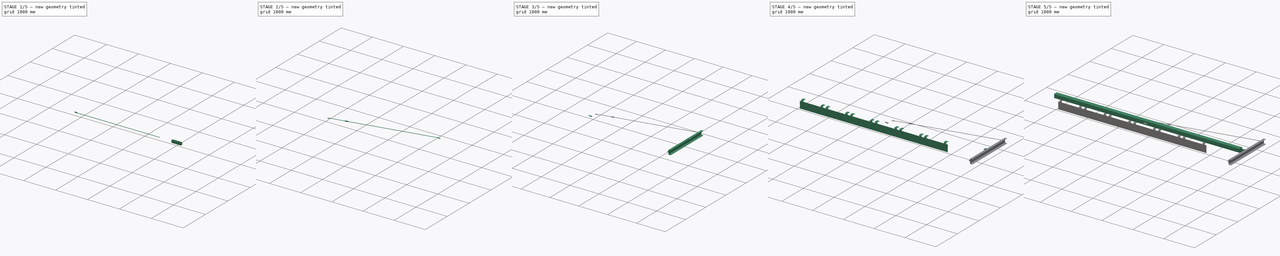
[diagram: build sequence overview — one tinted view per stage of 5, left to right]
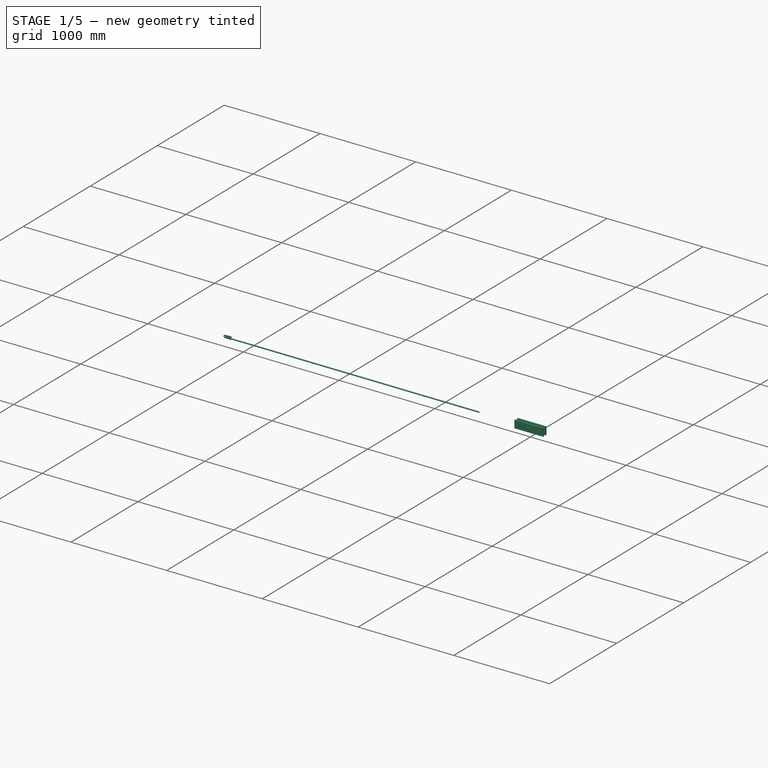
[diagram: stage 1 of 5 — iso view after this stage's code; geometry added in this stage tinted green]
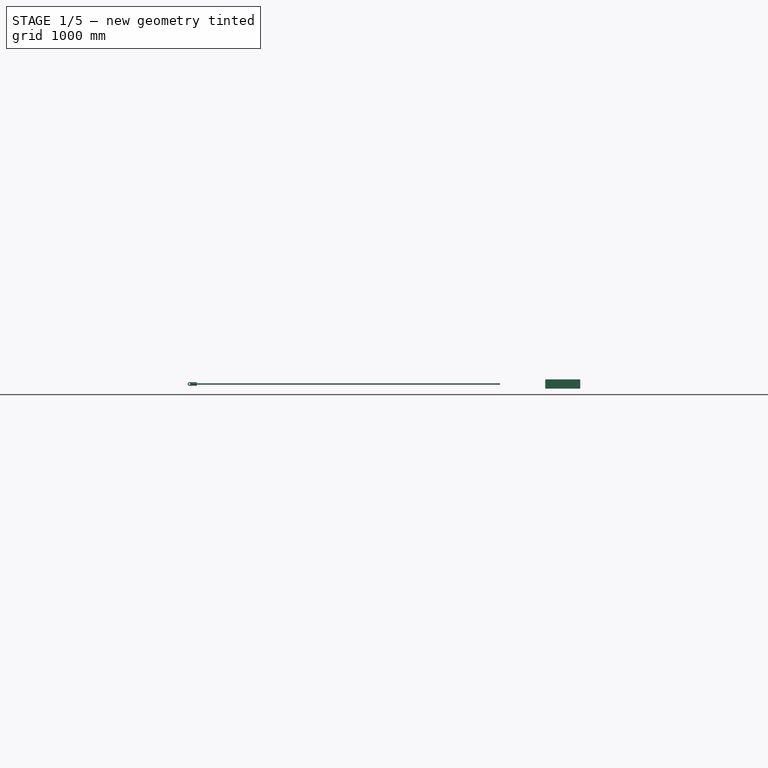
[diagram: stage 1 of 5 — front view after this stage's code; geometry added in this stage tinted green]
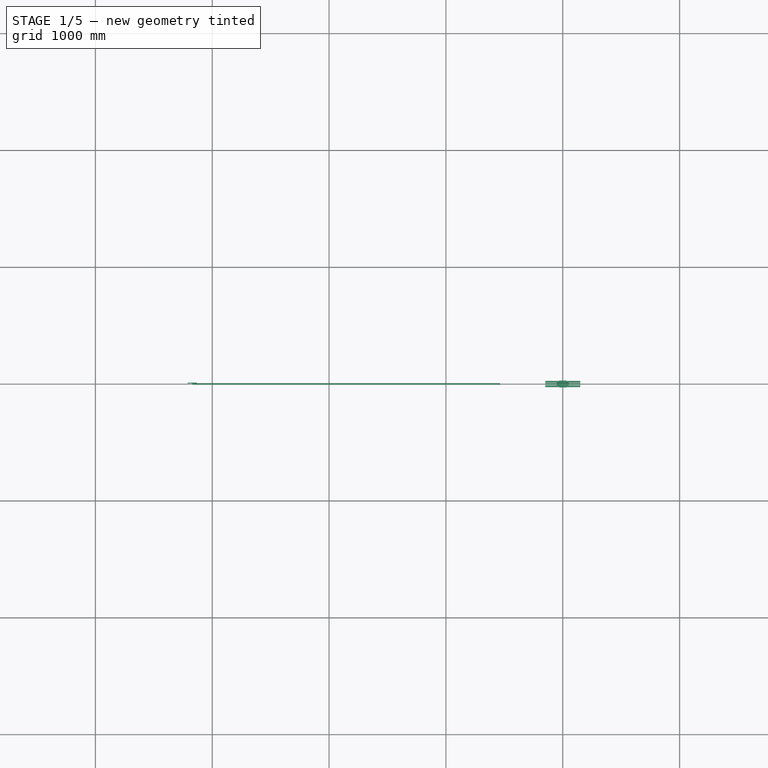
[diagram: stage 1 of 5 — top view after this stage's code; geometry added in this stage tinted green]
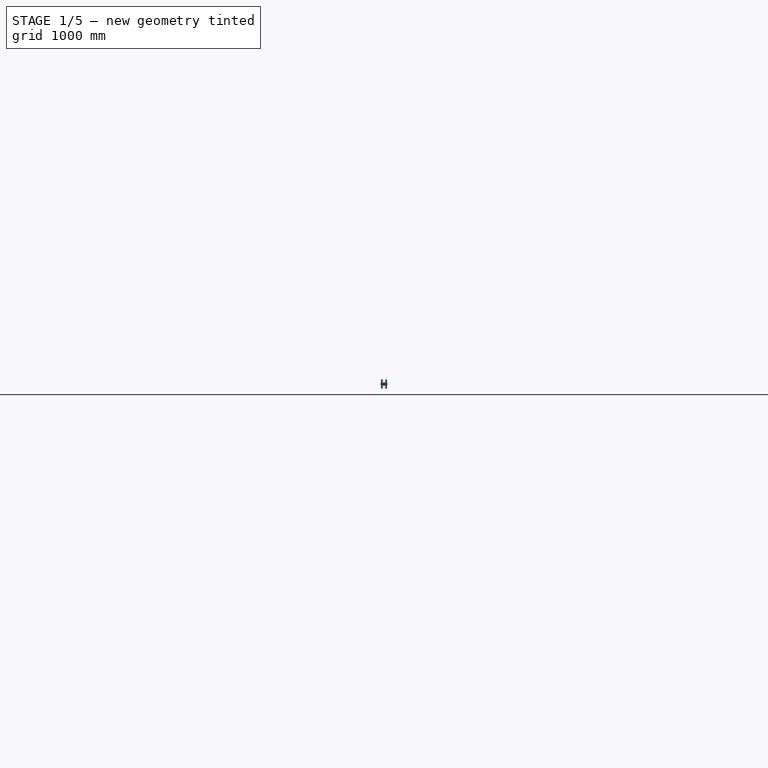
[diagram: stage 1 of 5 — right view after this stage's code; geometry added in this stage tinted green]
FCSTD DOCUMENT  (FreeCAD 1.0R39109 (Git))
Label: skimmerBrade
License: All rights reserved
LicenseURL: https://en.wikipedia.org/wiki/All_rights_reserved
objects: Sketcher::SketchObject×15, Part::Extrusion×15, Part::FeaturePython×8, App::Part×7, Part::Feature×4, Part::Mirroring×3, Part::Cut×3, Spreadsheet::Sheet×2, Part::Compound×2, Part::Cylinder×2, Part::Revolution×1
note: 67 computed .brp shape members not serialized (recipe doc carries the construction recipe); baked Part::Feature solids carry a one-line shape summary decoded from their .brp

FEATURE [Sketcher::SketchObject] Sketch029
  ArcFitTolerance = 0
  FullyConstrained = true
  MakeInternals = false
  Placement = pos=(0,0,0) rot=(1,0,0;1.5708rad)
  expr: Constraints[10] = Spreadsheet002.C6
  expr: Constraints[11] = Spreadsheet002.B6
  expr: Constraints[12] = Spreadsheet002.D6 / 2
  expr: Constraints[13] = Spreadsheet002.F6 / 2
  expr: Constraints[14] = Spreadsheet002.B6 / 2
  expr: Constraints[17] = Spreadsheet002.C6
  sketch-geometry (6):
    g0: LineSegment StartX=-50 StartY=0 StartZ=0 EndX=-50 EndY=11 EndZ=0
    g1: LineSegment StartX=-50 StartY=11 StartZ=0 EndX=-30 EndY=15 EndZ=0
    g2: LineSegment StartX=-30 StartY=15 StartZ=0 EndX=30 EndY=15 EndZ=0
    g3: LineSegment StartX=30 StartY=15 StartZ=0 EndX=50 EndY=11 EndZ=0
    g4: LineSegment StartX=50 StartY=11 StartZ=0 EndX=50 EndY=0 EndZ=0
    g5: LineSegment StartX=50 StartY=0 StartZ=0 EndX=-50 EndY=0 EndZ=0
  constraints (18):
    c: PointOnObject(g0,g-1)
    c: Vertical(g0)
    c: Coincident(g0,g1)
    c: Coincident(g1,g2)
    c: Horizontal(g2)
    c: Coincident(g2,g3)
    c: Coincident(g3,g4)
    c: PointOnObject(g4,g-1)
    c: Vertical(g4)
    c: Coincident(g4,g5)
    c: DistanceX(g2,g3) = 20
    c: DistanceX(g0,g3) = 100
    c: Distance(g1,g5) = 15
    c: Distance(g4) = 11
    c: DistanceX(g-1,g4) = 50
    c: Horizontal(g0,g3)
    c: Coincident(g5,g0)
    c: DistanceX(g0,g1) = 20
FEATURE [Part::Revolution] Revolve001
  Angle = 360
  Axis = (-1,0,0)
  AxisLink = -> Sketch029 [Edge6]
  Base = (-50,0,0)
  FaceMakerClass = Part::FaceMakerBullseye
  Solid = true
  Source = -> Sketch029
  Symmetric = false
FEATURE [Sketcher::SketchObject] Sketch030
  ArcFitTolerance = 0
  FullyConstrained = false
  MakeInternals = false
  Placement = pos=(0,0,0) rot=(0.57735,0.57735,0.57735;2.0944rad)
  expr: Constraints[16] = Spreadsheet002.F6
  expr: Constraints[17] = Spreadsheet002.F6 / 2
  sketch-geometry (8):
    g0: LineSegment StartX=-11 StartY=39.685 StartZ=0 EndX=-26 EndY=39.685 EndZ=0
    g1: LineSegment StartX=-26 StartY=39.685 StartZ=0 EndX=-26 EndY=-39.3666 EndZ=0
    g2: LineSegment StartX=-26 StartY=-39.3666 StartZ=0 EndX=-11 EndY=-39.3666 EndZ=0
    g3: LineSegment StartX=-11 StartY=-39.3666 StartZ=0 EndX=-11 EndY=39.685 EndZ=0
    g4: LineSegment StartX=11 StartY=39.685 StartZ=0 EndX=26 EndY=39.685 EndZ=0
    g5: LineSegment StartX=26 StartY=39.685 StartZ=0 EndX=26 EndY=-40.315 EndZ=0
    g6: LineSegment StartX=26 StartY=-40.315 StartZ=0 EndX=11 EndY=-40.315 EndZ=0
    g7: LineSegment StartX=11 StartY=-40.315 StartZ=0 EndX=11 EndY=39.685 EndZ=0
  constraints (22):
    c: Coincident(g0,g1)
    c: Coincident(g1,g2)
    c: Coincident(g2,g3)
    c: Coincident(g3,g0)
    c: Horizontal(g0)
    c: Horizontal(g2)
    c: Vertical(g1)
    c: Vertical(g3)
    c: Coincident(g4,g5)
    c: Coincident(g5,g6)
    c: Coincident(g6,g7)
    c: Coincident(g7,g4)
    c: Horizontal(g4)
    c: Horizontal(g6)
    c: Vertical(g5)
    c: Vertical(g7)
    c: DistanceX(g0,g4) = 22
    c: Distance(g-1,g7) = 11
    c: Distance(g5) = 80
    c: Distance(g4) = 15
    c: Distance(g0) = 15
    c: Horizontal(g0,g4)
FEATURE [Part::Extrusion] Extrude027  label="Extrude030"
  Base = -> Sketch030
  Dir = (1,0,0)
  DirMode = 2
  FaceMakerClass = Part::FaceMakerBullseye
  FaceMakerMode = 3
  LengthFwd = 300
  LengthRev = 0
  Solid = true
  Symmetric = true
FEATURE [Sketcher::SketchObject] Sketch031
  ArcFitTolerance = 0
  FullyConstrained = true
  MakeInternals = false
  Placement = pos=(0,0,0) rot=(1,0,0;1.5708rad)
  expr: Constraints[17] = Spreadsheet002.E6
  expr: Constraints[18] = Spreadsheet002.B6 - 2 * Spreadsheet002.C6
  expr: Constraints[19] = (Spreadsheet002.B6 - 2 * Spreadsheet002.C6) / 2
  expr: Constraints[20] = Spreadsheet002.E6 / 2
  sketch-geometry (9):
    g0: LineSegment StartX=30 StartY=3 StartZ=0 EndX=30 EndY=-3 EndZ=0
    g1: LineSegment StartX=25 StartY=-8 StartZ=0 EndX=-25 EndY=-8 EndZ=0
    g2: LineSegment StartX=-30 StartY=-3 StartZ=0 EndX=-30 EndY=3 EndZ=0
    g3: LineSegment StartX=-25 StartY=8 StartZ=0 EndX=25 EndY=8 EndZ=0
    g4: GeomPoint [constr] X=0 Y=0 Z=0
    g5: ArcOfCircle CenterX=-25 CenterY=3 CenterZ=0 NormalX=0 NormalY=0 NormalZ=1 AngleXU=0 Radius=5 StartAngle=1.5708 EndAngle=3.14159
    g6: ArcOfCircle CenterX=-25 CenterY=-3 CenterZ=0 NormalX=0 NormalY=0 NormalZ=1 AngleXU=0 Radius=5 StartAngle=3.14159 EndAngle=4.71239
    g7: ArcOfCircle CenterX=25 CenterY=-3 CenterZ=0 NormalX=0 NormalY=0 NormalZ=1 AngleXU=0 Radius=5 StartAngle=4.71239 EndAngle=6.28319
    g8: ArcOfCircle CenterX=25 CenterY=3 CenterZ=0 NormalX=0 NormalY=0 NormalZ=1 AngleXU=0 Radius=5 StartAngle=-4.09e-14 EndAngle=1.5708
  constraints (21):
    c: Horizontal(g1)
    c: Horizontal(g3)
    c: Vertical(g0)
    c: Vertical(g2)
    c: Coincident(g4,g-1)
    c: Tangent(g3,g5) = 1.5708
    c: Tangent(g2,g5) = 1.5708
    c: Tangent(g1,g6) = 1.5708
    c: Tangent(g2,g6) = 1.5708
    c: Tangent(g1,g7) = 1.5708
    c: Tangent(g0,g7) = 1.5708
    c: Tangent(g0,g8) = 1.5708
    c: Tangent(g3,g8) = 1.5708
    c: Radius(g8) = 5
    c: Equal(g8,g7)
    c: Equal(g7,g6)
    c: Equal(g6,g5)
    c: DistanceY(g1,g3) = 16
    c: DistanceX(g2,g0) = 60
    c: Distance(g4,g2) = 30
    c: Distance(g4,g1) = 8
FEATURE [Part::Extrusion] Extrude028  label="Extrude031"
  Base = -> Sketch031
  Dir = (0,-1,2e-16)
  DirMode = 2
  FaceMakerClass = Part::FaceMakerBullseye
  FaceMakerMode = 3
  LengthFwd = 60
  LengthRev = 0
  Solid = true
  Symmetric = true
FEATURE [Sketcher::SketchObject] Sketch032
  ArcFitTolerance = 0
  FullyConstrained = true
  MakeInternals = false
  Placement = pos=(0,0,0) rot=(0.57735,0.57735,0.57735;2.0944rad)
  expr: Constraints[1] = Spreadsheet002.dia / 2
  sketch-geometry (1):
    g0: Circle CenterX=0 CenterY=0 CenterZ=0 NormalX=0 NormalY=0 NormalZ=1 AngleXU=0 Radius=6
  constraints (2):
    c: Coincident(g0,g-1)
    c: Radius(g0) = 6
FEATURE [Part::Extrusion] Extrude029  label="Extrude032"
  Base = -> Sketch032
  Dir = (1,0,0)
  DirMode = 2
  FaceMakerClass = Part::FaceMakerBullseye
  FaceMakerMode = 3
  LengthFwd = 300
  LengthRev = 0
  Solid = true
  Symmetric = true
FEATURE [Part::Cylinder] Cylinder003  label="rod001"
  Angle = 360
  AttacherType = Attacher::AttachEngine3D
  FirstAngle = 0
  Height = 2635
  Placement = pos=(-536,0,-1.37e-13) rot=(0,-1,0;1.5708rad)
  Radius = 6
  SecondAngle = 0
  expr: .Placement.Base.x = -(Spreadsheet002.dia * 3 + 500)
  expr: Height = Spreadsheet002.l1
  expr: Radius = Spreadsheet002.dia / 2
FEATURE [Part::Extrusion] Extrude030  label="Extrude033"
  Base = -> Sketch028
  Dir = (0,-1,2e-16)
  DirMode = 2
  FaceMakerClass = Part::FaceMakerBullseye
  FaceMakerMode = 3
  LengthFwd = 6
  LengthRev = 0
  Placement = pos=(0,9,0) rot=(0,0,1;0rad)
  Solid = true
  Symmetric = true
  expr: .Placement.Base.y = Spreadsheet002.dia / 2 + Spreadsheet002.t0 / 2
  expr: LengthFwd = Spreadsheet002.t0
FEATURE [Part::FeaturePython] Clone004  label="Extrude034"  # Draft clone (typed FeaturePython)
  AttacherType = Attacher::AttachEngine3D
  Fuse = false
  Objects = -> [Extrude030]
  Placement = pos=(-3195,9,0) rot=(0,1,0;3.14159rad)
  Scale = (1,1,1)
  expr: .Placement.Base.x = -Spreadsheet002.L0
  expr: .Placement.Base.y = Spreadsheet002.t0 / 2 + Spreadsheet002.dia / 2
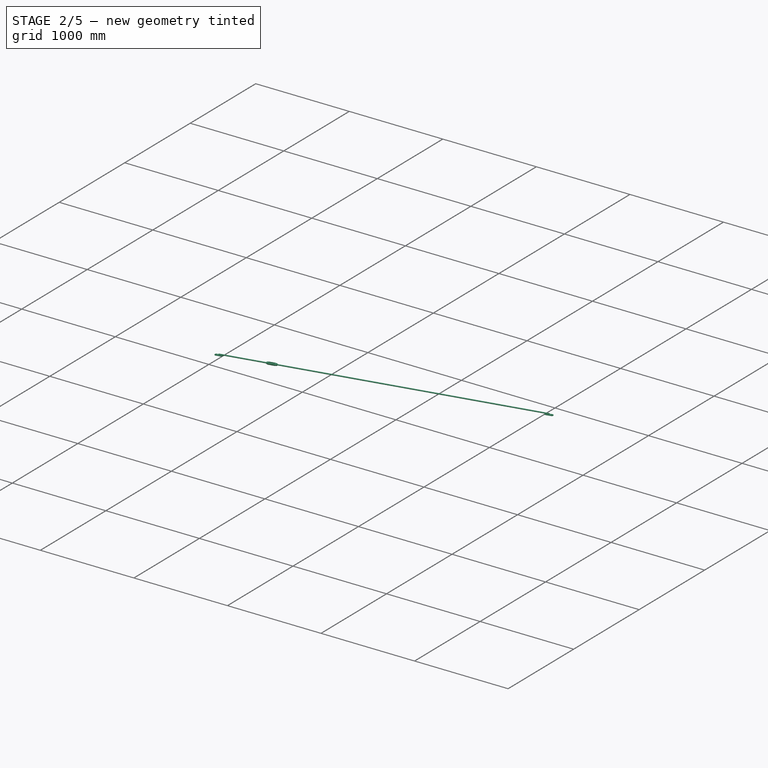
[diagram: stage 2 of 5 — iso view after this stage's code; geometry added in this stage tinted green]
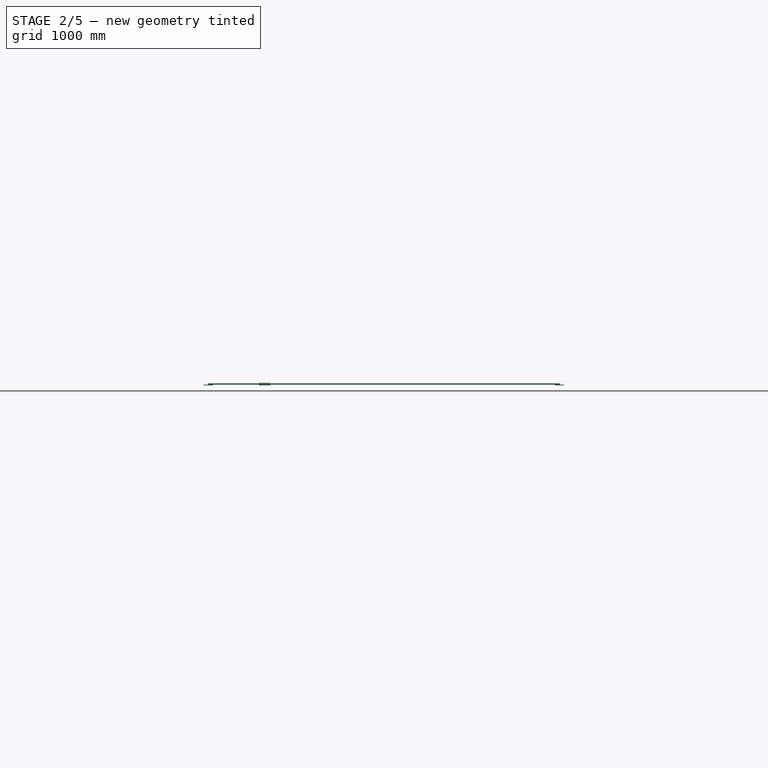
[diagram: stage 2 of 5 — front view after this stage's code; geometry added in this stage tinted green]
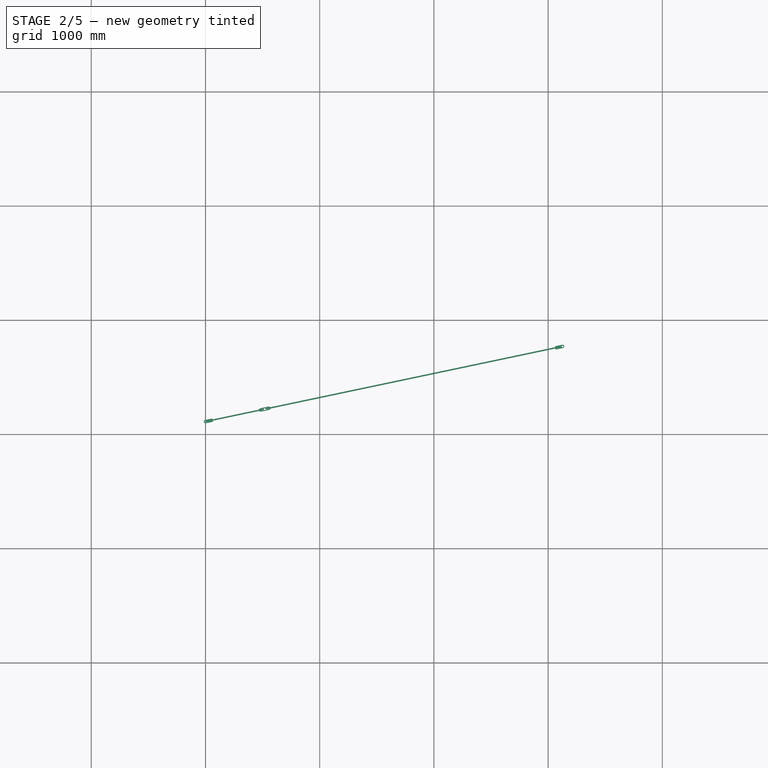
[diagram: stage 2 of 5 — top view after this stage's code; geometry added in this stage tinted green]
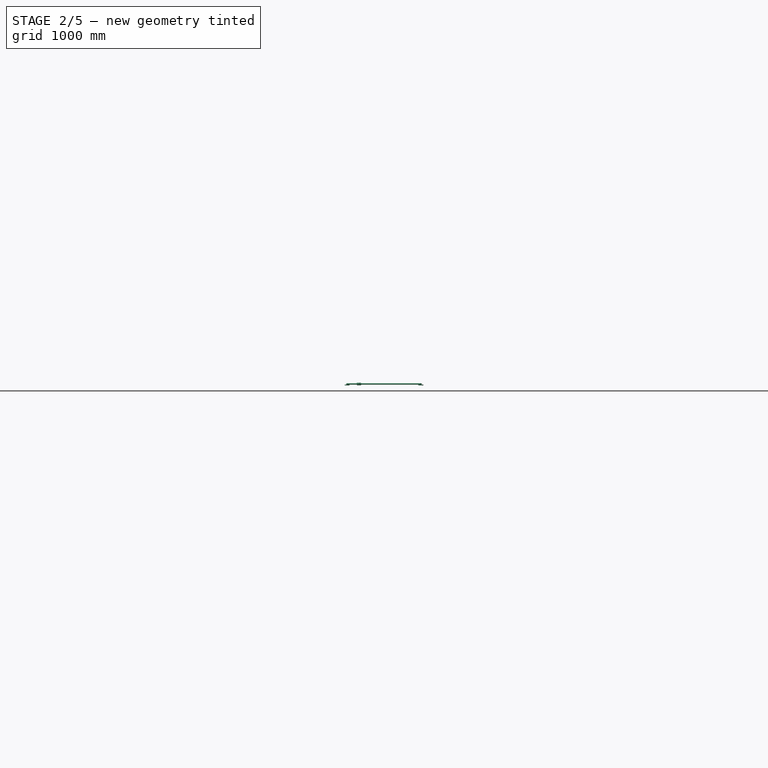
[diagram: stage 2 of 5 — right view after this stage's code; geometry added in this stage tinted green]
FEATURE [Spreadsheet::Sheet] Spreadsheet002
  cells = A2='rodDia dia; B2(dia)=12; C2='thickness; D2(t0)=6; A3='length L0; B3(L0)=3195; C3='l1; D3(l1)==L0 - (dia * 5 + 500); B4='l; C4='l1; D4='a; E4='b; F4='c; G4='e; H4='f; I4='g; J4='h; K4='i; L4='r; A5='forkEndR; B5=80; D5=25; E5=10; F5=14; G5=16; H5=13; I5=40; J5=5; K5=13; L5=15; A6='turnBackle; B6=100; C6=20; D6=30; E6=16; F6=22; A7='forkEndL; B7=60; D7=25; E7=10; F7=13; G7=16; H7=13; I7=20; L7=15; A8=1; B8=2; C8=3; D8=4; E8=5; F8=6; G8=7; H8=8; I8=9; J8=10; K8=11; L8=12; A9='turnBackle; A10='d; B10='l; C10='l1; D10='a; E10='b; F10='c; G10='t0; A11=10; B11=75; C11=15; D11=24; E11=13; F11=17; G11=6; A12=12; B12=100; C12=20; D12=30; E12=16; F12=22; G12=6; A13=16; B13=125; C13=24; D13=36; E13=20; F13=27; G13=9; A14=20; B14=150; C14=28; D14=42; E14=23; F14=33; G14=9; A15=22; B15=175; C15=33; D15=48; E15=27; F15=37; G15=9; A16=24; B16=200; C16=38; D16=54; E16=30; F16=42; G16=12; A17=30; B17=250; C17=47; D17=66; E17=37; F17=52; G17=12; A18='forkEnd_L; A19='d; B19='l; C19='a; D19='b; E19='c; F19='e; G19='f; H19='g; I19='r; A20=10; B20=50; C20=20; D20=7; E20=10; F20=12; G20=10; H20=15; I20=12; A21=12; B21=60; C21=25; D21=10; E21=13; F21=16; G21=13; H21=20; I21=15; A22=16; B22=75; C22=30; D22=13; E22=16; F22=20; G22=16; H22=25; I22=19; A23=20; B23=90; C23=40; D23=16; E23=20; F23=24; G23=20; H23=30; I23=23; A24=22; B24=100; C24=45; D24=20; E24=23; F24=28; G24=23; H24=35; I24=27; A25=24; B25=115; C25=50; D25=23; E25=26; F25=32; G25=26; H25=40; I25=30; A26=30; B26=140; C26=65; D26=30; E26=33; F26=40; G26=33; H26=50; I26=38; A27='forkEnd_R; A28='d; B28='l; C28='a; D28='b; E28='c; F28='r; G28='e; H28='f; I28='g; J28='h; K28='i; A29=10; +76 more cells
FEATURE [Sketcher::SketchObject] Sketch028
  ArcFitTolerance = 0
  FullyConstrained = true
  MakeInternals = false
  Placement = pos=(0,0,0) rot=(1,0,0;1.5708rad)
  expr: Constraints[11] = Spreadsheet002.I5 + Spreadsheet002.dia * 2
  expr: Constraints[1] = Spreadsheet002.F5 / 2
  expr: Constraints[3] = Spreadsheet002.L5
  sketch-geometry (5):
    g0: Circle CenterX=0 CenterY=0 CenterZ=0 NormalX=0 NormalY=0 NormalZ=1 AngleXU=0 Radius=7
    g1: ArcOfCircle CenterX=0 CenterY=0 CenterZ=0 NormalX=0 NormalY=0 NormalZ=1 AngleXU=0 Radius=15 StartAngle=4.71239 EndAngle=7.85398
    g2: LineSegment StartX=-4.87e-14 StartY=15 StartZ=0 EndX=-64 EndY=15 EndZ=0
    g3: LineSegment StartX=-64 StartY=15 StartZ=0 EndX=-64 EndY=-15 EndZ=0
    g4: LineSegment StartX=-64 StartY=-15 StartZ=0 EndX=0 EndY=-15 EndZ=0
  constraints (12):
    c: Coincident(g0,g-1)
    c: Radius(g0) = 7
    c: Coincident(g1,g0)
    c: Radius(g1) = 15
    c: Horizontal(g2)
    c: Coincident(g2,g3)
    c: Vertical(g3)
    c: Coincident(g3,g4)
    c: Horizontal(g4)
    c: Tangent(g1,g2) = -1.5708
    c: Tangent(g1,g4) = -1.5708
    c: Distance(g2) = 64
FEATURE [Part::Cylinder] Cylinder002  label="円柱001"
  Angle = 360
  AttacherType = Attacher::AttachEngine3D
  FirstAngle = 0
  Height = 500
  Placement = pos=(-24,0,0) rot=(0,-1,0;1.5708rad)
  Radius = 6
  SecondAngle = 0
  expr: .Placement.Base.x = -Spreadsheet002.dia * 2
  expr: Radius = Spreadsheet002.dia / 2
FEATURE [Part::Cut] Cut009
  Base = -> Revolve001
  Tool = -> Extrude027
FEATURE [Part::Cut] Cut010
  Base = -> Cut009
  Tool = -> Extrude028
FEATURE [Part::Cut] Cut011  label="turnBackle001"
  Base = -> Cut010
  Placement = pos=(-530,0,0) rot=(0,0,1;0rad)
  Tool = -> Extrude029
  expr: .Placement.Base.x = -(Spreadsheet002.dia * 2.5 + 500)
FEATURE [App::Part] Part005  label="TurnBackleB"
  Group = -> [Spreadsheet002,Sketch028,Cylinder002,Extrude030,Revolve001,Sketch030,Cut010,Cut009,Extrude027,Extrude028,Extrude029,Sketch031,Sketch029,Sketch032,Cut011,Cylinder003,Clone004]
  Origin = -> Origin007
  Placement = pos=(-1778.27,238.926,0) rot=(1,0,0;4.71239rad)
FEATURE [Part::Compound] Compound004  label="trunBackle"
  Links = -> [Part005]
  Placement = pos=(-4690.78,487.977,0) rot=(0,0,1;2.9339rad)
FEATURE [Part::Mirroring] Mirror003  label="trunBackle (mirrored)"
  Base = (1000,0,0)
  Normal = (0,-1,0)
  Source = -> Compound004
FEATURE [App::Part] Part002  label="skimmerBrade001"
  Group = -> [Part001,Part,CNROK75_U,Compound,Spreadsheet,Part003,Array,ChannelSteel,Extrude016,Sketch019,Extrude018,Mirror002,Part005,Compound004,Mirror003]
  Origin = -> Origin002
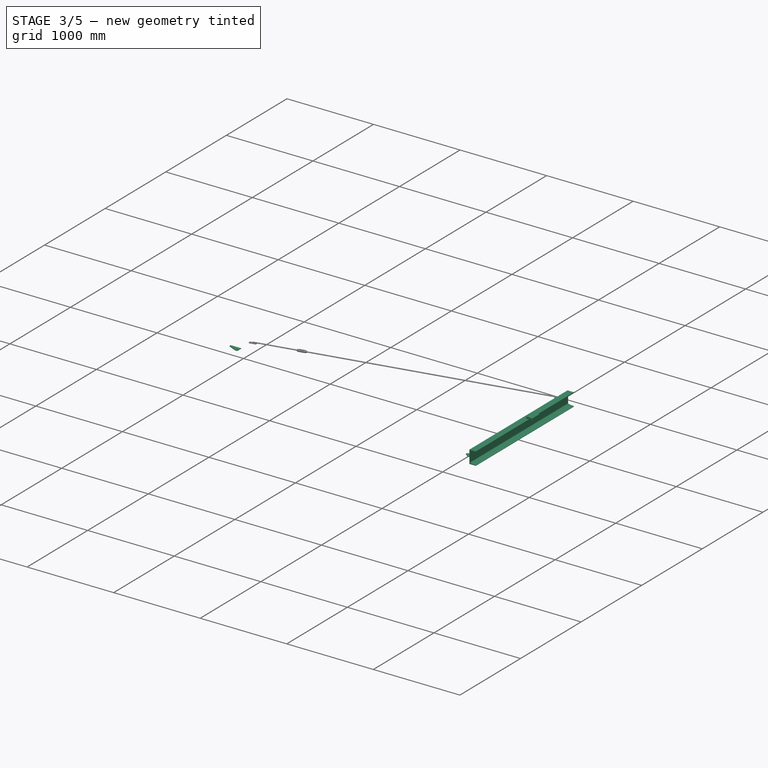
[diagram: stage 3 of 5 — iso view after this stage's code; geometry added in this stage tinted green]
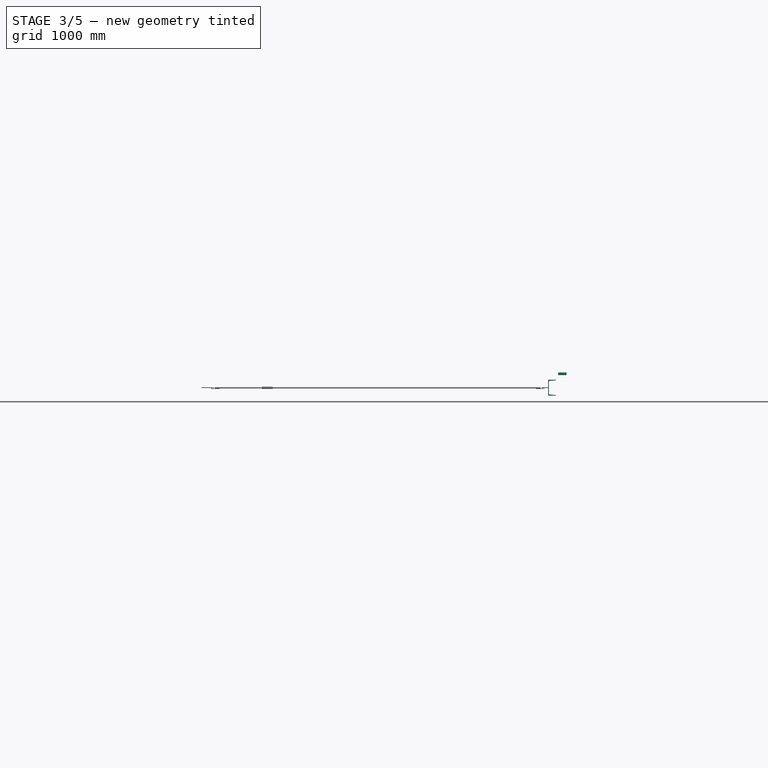
[diagram: stage 3 of 5 — front view after this stage's code; geometry added in this stage tinted green]
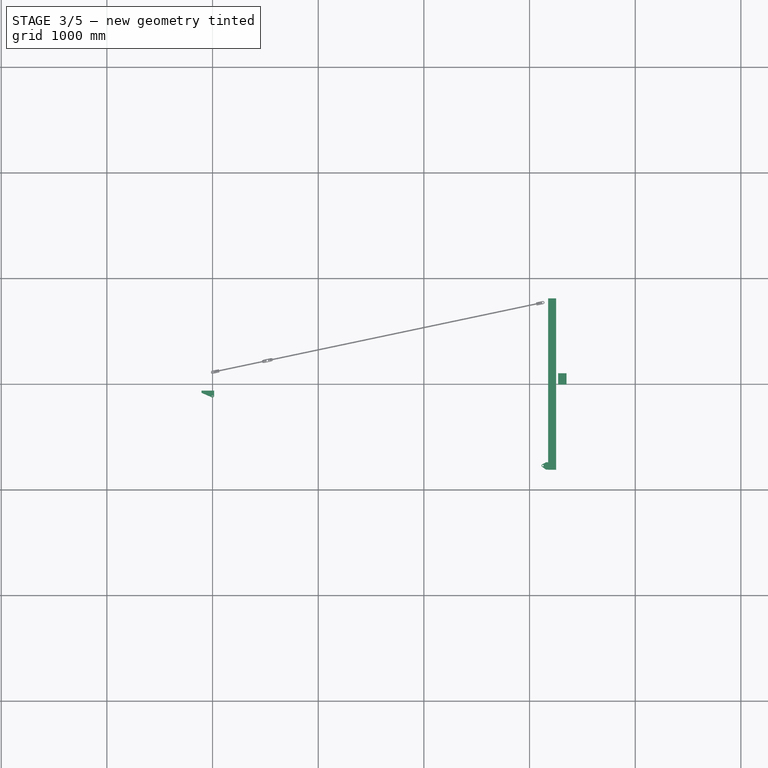
[diagram: stage 3 of 5 — top view after this stage's code; geometry added in this stage tinted green]
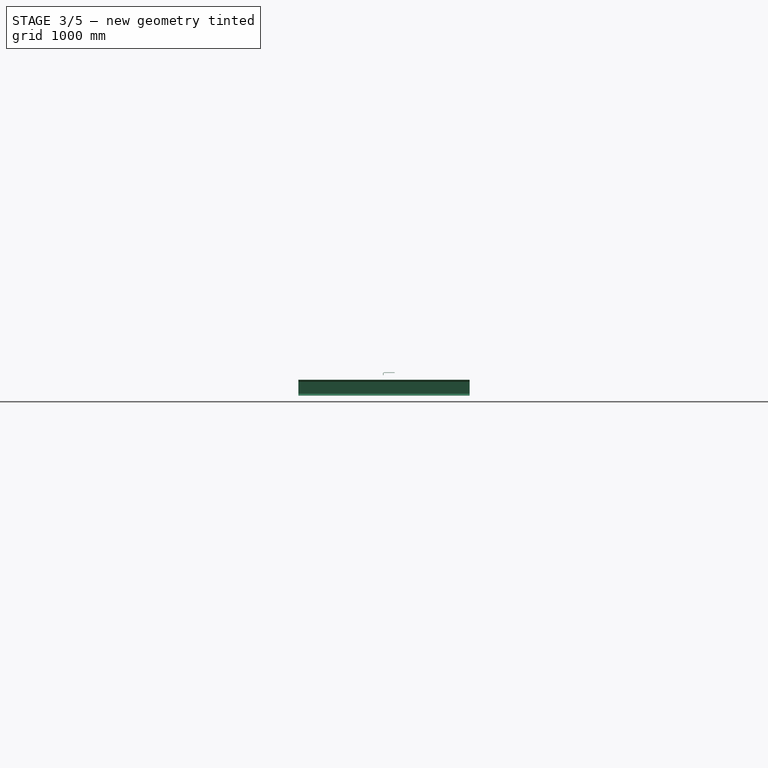
[diagram: stage 3 of 5 — right view after this stage's code; geometry added in this stage tinted green]
FEATURE [Sketcher::SketchObject] Sketch007
  ArcFitTolerance = 0
  AttachmentSupport = -> [Extrude004]
  FullyConstrained = false
  MakeInternals = false
  MapMode = 5
  Placement = pos=(-400,-4.5,-12) rot=(0.57735,-0.57735,-0.57735;2.0944rad)
  sketch-geometry (8):
    g0: LineSegment StartX=-104.645 StartY=156.908 StartZ=0 EndX=-4.64507 EndY=156.908 EndZ=0
    g1: LineSegment StartX=3.35493 StartY=148.908 StartZ=0 EndX=3.35493 EndY=130.908 EndZ=0
    g2: LineSegment StartX=3.35493 StartY=130.908 StartZ=0 EndX=0.354931 EndY=130.908 EndZ=0
    g3: LineSegment StartX=0.354931 StartY=130.908 StartZ=0 EndX=0.354931 EndY=148.908 EndZ=0
    g4: LineSegment StartX=-4.64507 StartY=153.908 StartZ=0 EndX=-104.645 EndY=153.908 EndZ=0
    g5: LineSegment StartX=-104.645 StartY=153.908 StartZ=0 EndX=-104.645 EndY=156.908 EndZ=0
    g6: ArcOfCircle CenterX=-4.64507 CenterY=148.908 CenterZ=0 NormalX=0 NormalY=0 NormalZ=1 AngleXU=0 Radius=5 StartAngle=3.3e-15 EndAngle=1.5708
    g7: ArcOfCircle CenterX=-4.64507 CenterY=148.908 CenterZ=0 NormalX=0 NormalY=0 NormalZ=1 AngleXU=0 Radius=8 StartAngle=-1.8e-15 EndAngle=1.5708
  constraints (19):
    c: Horizontal(g0)
    c: Vertical(g1)
    c: Coincident(g1,g2)
    c: Horizontal(g2)
    c: Coincident(g2,g3)
    c: Vertical(g3)
    c: Horizontal(g4)
    c: Coincident(g4,g5)
    c: Coincident(g5,g0)
    c: Vertical(g5)
    c: DistanceX(g2,g2) = 3
    c: Tangent(g3,g6) = -1.5708
    c: Tangent(g4,g6) = -1.5708
    c: Tangent(g1,g7) = 1.5708
    c: Tangent(g0,g7) = 1.5708
    c: Coincident(g6,g7)
    c: DistanceX(g4,g4) = 100
    c: DistanceY(g3,g3) = 18
    c: Radius(g6) = 5
FEATURE [Part::Extrusion] Extrude007  label="Extrude009"
  Base = -> Sketch007
  Dir = (-1,0,0)
  DirMode = 2
  FaceMakerClass = Part::FaceMakerBullseye
  FaceMakerMode = 3
  LengthFwd = 80
  LengthRev = 0
  Placement = pos=(34,0,0) rot=(0,0,1;0rad)
  Reversed = true
  Solid = true
  Symmetric = false
FEATURE [Part::FeaturePython] Clone003  label="Extrude010"  # Draft clone (typed FeaturePython)
  AttacherType = Attacher::AttachEngine3D
  Fuse = false
  Objects = -> [Extrude007]
  Placement = pos=(670,0,0) rot=(0,0,1;0rad)
  Scale = (1,1,1)
  expr: .Placement.Base.x = Spreadsheet.w1 - (50 + 46 + 34)
FEATURE [Part::FeaturePython] ChannelSteel  # WARN: FeaturePython — macro-defined, semantics opaque (R4)
  B = 75
  H = 150
  L = 1000
  Placement = pos=(176,0,-75) rot=(0,0,1;0rad)
  Solid = false
  g0 = 7.85
  mass = 0
  size = 3
  standard = SS
  t1 = 6.5
  t2 = 10
FEATURE [Part::Extrusion] Extrude016  label="Extrude019"
  Base = -> ChannelSteel
  Dir = (0,1,0)
  DirMode = 2
  FaceMakerClass = Part::FaceMakerBullseye
  FaceMakerMode = 3
  LengthFwd = 1620
  LengthRev = 0
  Solid = false
  Symmetric = true
  expr: LengthFwd = Spreadsheet.cw
FEATURE [Sketcher::SketchObject] Sketch018
  ArcFitTolerance = 0
  FullyConstrained = true
  MakeInternals = false
  MapMode = 5
  Placement = pos=(0,0,62.5) rot=(0,0,1;0rad)
  sketch-geometry (6):
    g0: LineSegment StartX=-2985 StartY=62.5 StartZ=0 EndX=-2985 EndY=112.5 EndZ=0
    g1: ArcOfCircle CenterX=-3000 CenterY=112.5 CenterZ=0 NormalX=0 NormalY=0 NormalZ=1 AngleXU=0 Radius=15 StartAngle=0 EndAngle=1.98689
    g2: LineSegment StartX=-3006.06 StartY=126.22 StartZ=0 EndX=-3105 EndY=82.5 EndZ=0
    g3: LineSegment StartX=-3105 StartY=82.5 StartZ=0 EndX=-3105 EndY=62.5 EndZ=0
    g4: LineSegment StartX=-3105 StartY=62.5 StartZ=0 EndX=-2985 EndY=62.5 EndZ=0
    g5: Circle CenterX=-3000 CenterY=112.5 CenterZ=0 NormalX=0 NormalY=0 NormalZ=1 AngleXU=0 Radius=7.5
  constraints (16):
    c: Tangent(g0,g1) = -1.5708
    c: Coincident(g2,g3)
    c: Vertical(g3)
    c: Coincident(g3,g4)
    c: Coincident(g4,g0)
    c: Coincident(g5,g1)
    c: Diameter(g5) = 15
    c: Radius(g1) = 15
    c: Vertical(g0)
    c: Tangent(g1,g2) = -1.5708
    c: Horizontal(g4)
    c: DistanceY(g3,g3) = 20
    c: DistanceX(g4,g4) = 120
    c: DistanceY(g0,g1) = 50
    c: DistanceY(g-1,g0) = 62.5
    c: DistanceX(g-2,g1) = -3000
FEATURE [Part::Extrusion] Extrude017  label="Extrude020"
  Base = -> Sketch018
  Dir = (0,0,1)
  DirMode = 2
  FaceMakerClass = Part::FaceMakerBullseye
  FaceMakerMode = 3
  LengthFwd = 6
  LengthRev = 0
  Placement = pos=(0,0,-62.5) rot=(0,0,1;0rad)
  Solid = true
  Symmetric = true
FEATURE [Part::Mirroring] Mirror001  label="Extrude020 (mirrored)"
  Base = (-3100,0,0)
  Normal = (0,-1,0)
  Source = -> Extrude017
FEATURE [Sketcher::SketchObject] Sketch019
  ArcFitTolerance = 0
  AttachmentSupport = -> [Extrude016]
  FullyConstrained = false
  MakeInternals = false
  MapMode = 5
  Placement = pos=(0,0,75) rot=(0,0,1;0rad)
  sketch-geometry (7):
    g0: LineSegment StartX=176 StartY=810 StartZ=0 EndX=156 EndY=810 EndZ=0
    g1: LineSegment StartX=156 StartY=810 StartZ=0 EndX=118.097 EndY=782.845 EndZ=0
    g2: ArcOfCircle CenterX=126 CenterY=771.813 CenterZ=0 NormalX=0 NormalY=0 NormalZ=1 AngleXU=0 Radius=13.5708 StartAngle=2.19246 EndAngle=4.21323
    g3: LineSegment StartX=119.504 StartY=759.898 StartZ=0 EndX=156 EndY=740 EndZ=0
    g4: LineSegment StartX=156 StartY=740 StartZ=0 EndX=176 EndY=740 EndZ=0
    g5: LineSegment StartX=176 StartY=740 StartZ=0 EndX=176 EndY=810 EndZ=0
    g6: Circle CenterX=126 CenterY=771.813 CenterZ=0 NormalX=0 NormalY=0 NormalZ=1 AngleXU=0 Radius=7.5
  constraints (16):
    c: Horizontal(g0)
    c: Coincident(g0,g1)
    c: Tangent(g1,g2) = -1.5708
    c: Coincident(g3,g4)
    c: Horizontal(g4)
    c: Coincident(g4,g5)
    c: Coincident(g5,g0)
    c: Vertical(g5)
    c: Coincident(g6,g2)
    c: Diameter(g6) = 15
    c: Coincident(g0,g-3)
    c: DistanceY(g5,g5) = 70
    c: Tangent(g2,g3) = -1.5708
    c: Vertical(g0,g3)
    c: DistanceX(g0,g0) = 20
    c: Distance(g2,g5) = 50
FEATURE [Part::Extrusion] Extrude018  label="Extrude021"
  Base = -> Sketch019
  Dir = (0,0,1)
  DirMode = 2
  FaceMakerClass = Part::FaceMakerBullseye
  FaceMakerMode = 3
  LengthFwd = 6
  LengthRev = 0
  Placement = pos=(0,0,-75) rot=(0,0,1;0rad)
  Solid = true
  Symmetric = true
FEATURE [Part::Mirroring] Mirror002  label="Extrude021 (mirrored)"
  Base = (1000,0,0)
  Normal = (0,-1,0)
  Source = -> Extrude018
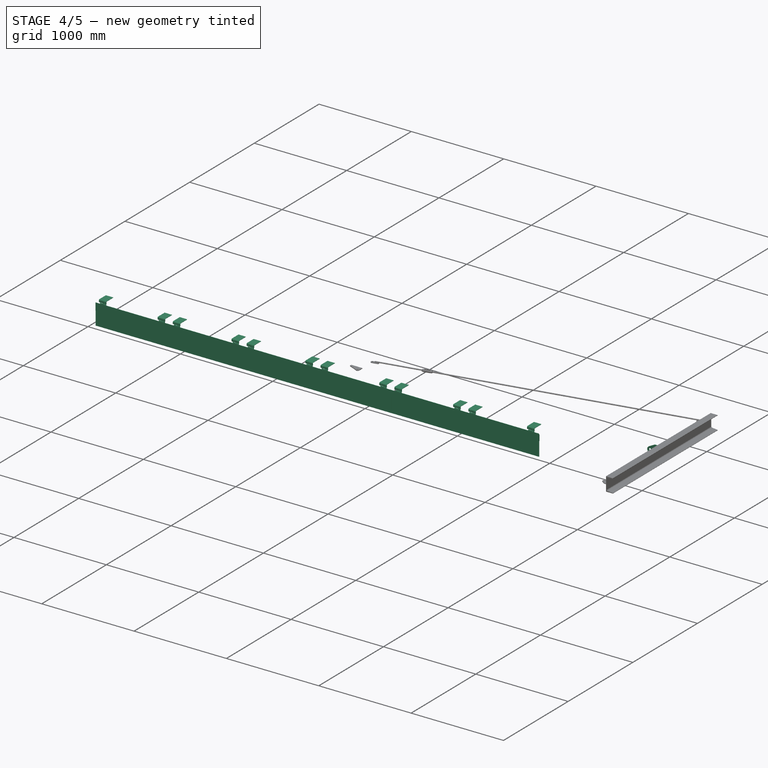
[diagram: stage 4 of 5 — iso view after this stage's code; geometry added in this stage tinted green]
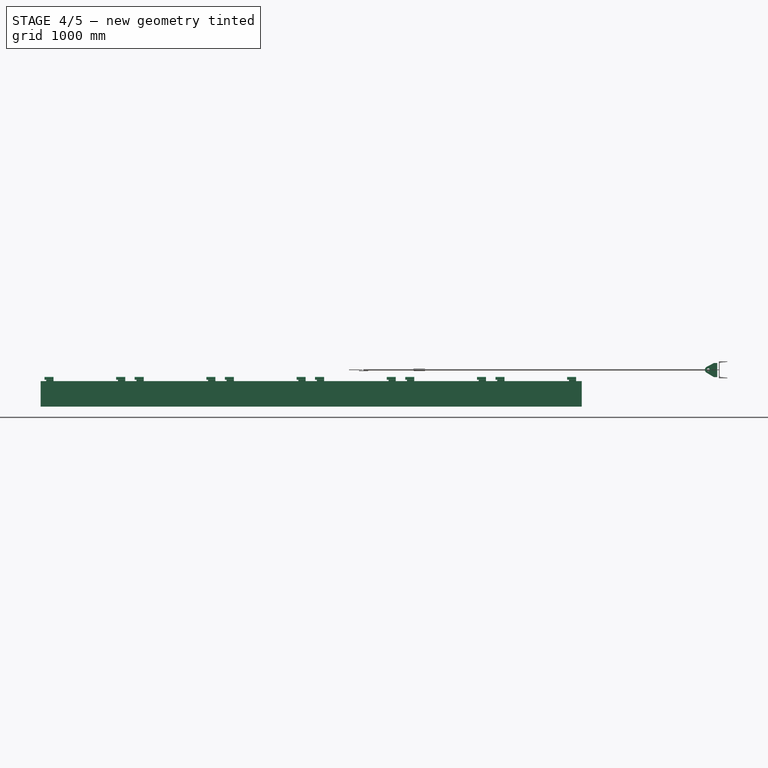
[diagram: stage 4 of 5 — front view after this stage's code; geometry added in this stage tinted green]
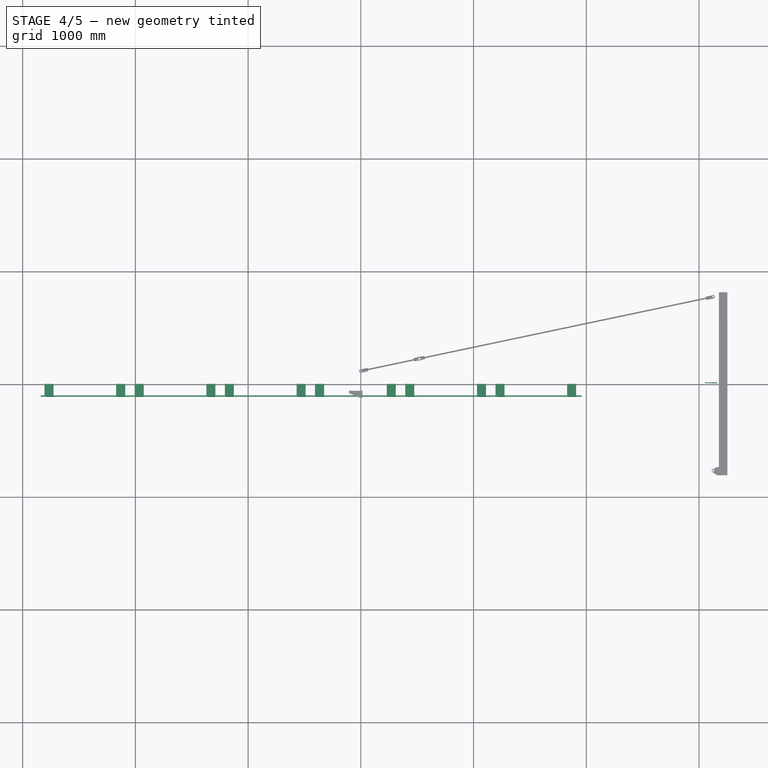
[diagram: stage 4 of 5 — top view after this stage's code; geometry added in this stage tinted green]
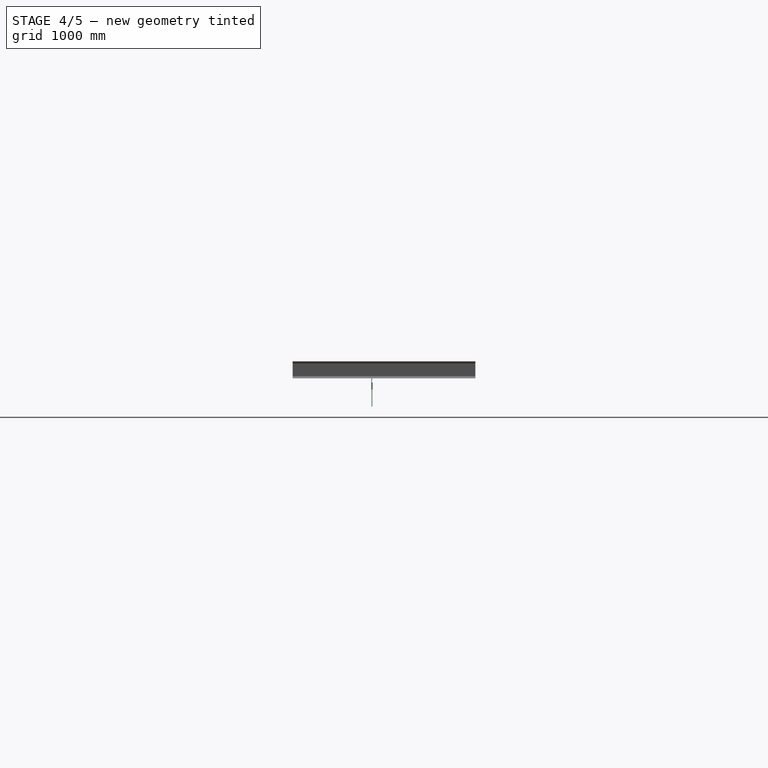
[diagram: stage 4 of 5 — right view after this stage's code; geometry added in this stage tinted green]
FEATURE [Sketcher::SketchObject] Sketch002
  ArcFitTolerance = 0
  FullyConstrained = false
  MakeInternals = false
  Placement = pos=(0,0,0) rot=(1,0,0;1.5708rad)
  sketch-geometry (7):
    g0: ArcOfCircle CenterX=81.7032 CenterY=0 CenterZ=0 NormalX=0 NormalY=0 NormalZ=1 AngleXU=0 Radius=30 StartAngle=2.05435 EndAngle=4.1734
    g1: LineSegment StartX=67.7553 StartY=26.5604 StartZ=0 EndX=131.703 EndY=60.1419 EndZ=0
    g2: LineSegment StartX=131.703 StartY=60.1419 StartZ=0 EndX=161.703 EndY=60.1419 EndZ=0
    g3: LineSegment StartX=161.703 StartY=60.1419 StartZ=0 EndX=161.703 EndY=-64.8581 EndZ=0
    g4: LineSegment StartX=161.703 StartY=-64.8581 StartZ=0 EndX=131.703 EndY=-64.8581 EndZ=0
    g5: LineSegment StartX=131.703 StartY=-64.8581 StartZ=0 EndX=66.3053 EndY=-25.7469 EndZ=0
    g6: Circle CenterX=81.7032 CenterY=0 CenterZ=0 NormalX=0 NormalY=0 NormalZ=1 AngleXU=0 Radius=13
  constraints (17):
    c: PointOnObject(g0,g-1)
    c: Coincident(g1,g2)
    c: Horizontal(g2)
    c: Coincident(g2,g3)
    c: Coincident(g3,g4)
    c: Coincident(g4,g5)
    c: Tangent(g0,g5) = 1.5708
    c: Tangent(g0,g1) = 1.5708
    c: Vertical(g3)
    c: Distance(g0,g3) = 80
    c: Horizontal(g4)
    c: DistanceX(g2,g2) = 30
    c: Equal(g2,g4)
    c: Radius(g0) = 30
    c: Coincident(g6,g0)
    c: Diameter(g6) = 26
    c: DistanceY(g3,g3) = 125
FEATURE [Part::Extrusion] Extrude002  label="Extrude003"
  Base = -> Sketch002
  Dir = (0,-1,2e-16)
  DirMode = 2
  FaceMakerClass = Part::FaceMakerBullseye
  FaceMakerMode = 3
  LengthFwd = 6
  LengthRev = 0
  Placement = pos=(0,9,0) rot=(0,0,1;0rad)
  Solid = true
  Symmetric = true
FEATURE [App::Part] Part001  label="gusset"
  Group = -> [Sketch002,Sketch003,Extrude002,Extrude003,Clone001]
  Origin = -> Origin001
  Placement = pos=(4,0,0) rot=(0,0,1;0rad)
FEATURE [Part::Feature] Part__Feature002  label="HNS3L_1"
  shape: bbox 64 x 7.5 x 21.75 mm, 15 faces (baked)
FEATURE [Part::Feature] Part__Feature003  label="HNS3L_2"
  shape: bbox 64 x 7.5 x 21.75 mm, 12 faces (baked)
FEATURE [App::Part] HNS3L
  Group = -> [Part__Feature002,Part__Feature003]
  Origin = -> Origin004
  Placement = pos=(-350,-8,115) rot=(1,0,0;3.14159rad)
  expr: .Placement.Base.x = -Spreadsheet.w1 / 2 + 50
FEATURE [Sketcher::SketchObject] Sketch004
  ArcFitTolerance = 0
  FullyConstrained = true
  MakeInternals = false
  Placement = pos=(0,0,0) rot=(1,0,0;1.5708rad)
  expr: Constraints[10] = Spreadsheet.w1
  sketch-geometry (5):
    g0: LineSegment StartX=-400 StartY=-107.5 StartZ=0 EndX=-400 EndY=107.5 EndZ=0
    g1: LineSegment StartX=-400 StartY=107.5 StartZ=0 EndX=400 EndY=107.5 EndZ=0
    g2: LineSegment StartX=400 StartY=107.5 StartZ=0 EndX=400 EndY=-107.5 EndZ=0
    g3: LineSegment StartX=400 StartY=-107.5 StartZ=0 EndX=-400 EndY=-107.5 EndZ=0
    g4: GeomPoint [constr] X=0 Y=0 Z=0
  constraints (12):
    c: Coincident(g0,g1)
    c: Coincident(g1,g2)
    c: Coincident(g2,g3)
    c: Coincident(g3,g0)
    c: Horizontal(g1)
    c: Horizontal(g3)
    c: Vertical(g0)
    c: Vertical(g2)
    c: Symmetric(g1,g0,g4)
    c: Coincident(g4,g-1)
    c: Distance(g1) = 800
    c: DistanceY(g2,g2) = 215
FEATURE [Part::Extrusion] Extrude004
  Base = -> Sketch004
  Dir = (0,-1,2e-16)
  DirMode = 2
  FaceMakerClass = Part::FaceMakerBullseye
  FaceMakerMode = 3
  LengthFwd = 5
  LengthRev = 0
  Placement = pos=(0,-4.5,-12) rot=(0,0,1;0rad)
  Solid = true
  Symmetric = false
FEATURE [Part::FeaturePython] Clone002  label="HNS3L001"  # Draft clone (typed FeaturePython)
  AttacherType = Attacher::AttachEngine3D
  Fuse = false
  Objects = -> [HNS3L]
  Placement = pos=(286,-8,115) rot=(1,0,0;3.14159rad)
  Scale = (1,1,1)
  expr: .Placement.Base.x = Spreadsheet.w1 / 2 - 114
FEATURE [Sketcher::SketchObject] Sketch005
  ArcFitTolerance = 0
  FullyConstrained = true
  MakeInternals = false
  Placement = pos=(0,0,0) rot=(1,0,0;1.5708rad)
  expr: Constraints[11] = Spreadsheet.w1
  sketch-geometry (5):
    g0: LineSegment StartX=-400 StartY=-37.5 StartZ=0 EndX=-400 EndY=37.5 EndZ=0
    g1: LineSegment StartX=-400 StartY=37.5 StartZ=0 EndX=400 EndY=37.5 EndZ=0
    g2: LineSegment StartX=400 StartY=37.5 StartZ=0 EndX=400 EndY=-37.5 EndZ=0
    g3: LineSegment StartX=400 StartY=-37.5 StartZ=0 EndX=-400 EndY=-37.5 EndZ=0
    g4: GeomPoint [constr] X=0 Y=0 Z=0
  constraints (12):
    c: Coincident(g0,g1)
    c: Coincident(g1,g2)
    c: Coincident(g2,g3)
    c: Coincident(g3,g0)
    c: Horizontal(g1)
    c: Horizontal(g3)
    c: Vertical(g0)
    c: Vertical(g2)
    c: Symmetric(g1,g0,g4)
    c: Coincident(g4,g-1)
    c: DistanceY(g2,g2) = 75
    c: DistanceX(g3,g3) = 800
FEATURE [Part::Extrusion] Extrude005  label="Extrude007"
  Base = -> Sketch005
  Dir = (0,-1,2e-16)
  DirMode = 2
  FaceMakerClass = Part::FaceMakerBullseye
  FaceMakerMode = 3
  LengthFwd = 3
  LengthRev = 0
  Placement = pos=(0,-9.5,70) rot=(0,0,1;0rad)
  Solid = true
  Symmetric = false
FEATURE [Sketcher::SketchObject] Sketch006
  ArcFitTolerance = 0
  AttachmentSupport = -> [Extrude004]
  ExternalGeometry = -> [Extrude004,Extrude005]
  FullyConstrained = true
  MakeInternals = false
  MapMode = 5
  Placement = pos=(-400,-4.5,-12) rot=(0.57735,-0.57735,-0.57735;2.0944rad)
  sketch-geometry (4):
    g0: LineSegment StartX=2.4e-14 StartY=107.5 StartZ=0 EndX=-3 EndY=107.5 EndZ=0
    g1: LineSegment StartX=-3 StartY=107.5 StartZ=0 EndX=-3 EndY=44.5 EndZ=0
    g2: LineSegment StartX=-3 StartY=44.5 StartZ=0 EndX=2.4e-14 EndY=44.5 EndZ=0
    g3: LineSegment StartX=2.4e-14 StartY=44.5 StartZ=0 EndX=2.4e-14 EndY=107.5 EndZ=0
  constraints (11):
    c: Coincident(g0,g1)
    c: Coincident(g1,g2)
    c: Coincident(g2,g3)
    c: Coincident(g3,g0)
    c: Horizontal(g0)
    c: Horizontal(g2)
    c: Vertical(g1)
    c: Vertical(g3)
    c: DistanceX(g0,g0) = 3
    c: Coincident(g0,g-3)
    c: Horizontal(g1,g-4)
FEATURE [Part::Extrusion] Extrude006  label="Extrude008"
  Base = -> Sketch006
  Dir = (-1,0,0)
  DirMode = 2
  FaceMakerClass = Part::FaceMakerBullseye
  FaceMakerMode = 3
  LengthFwd = 800
  LengthRev = 0
  Reversed = true
  Solid = true
  Symmetric = false
  expr: LengthFwd = Spreadsheet.w1
FEATURE [App::Part] Part003  label="brade"
  Group = -> [Sketch004,Extrude004,Clone002,HNS3L,Sketch005,Extrude005,Sketch006,Extrude006,Sketch007,Extrude007,Clone003]
  Origin = -> Origin005
  Placement = pos=(-5440,-100,-207.547) rot=(0,0,1;0rad)
  expr: .Placement.Base.x = -Spreadsheet.L0 + 560
FEATURE [Part::FeaturePython] Array  label="brade001"  # Draft array (typed FeaturePython)
  AlwaysSyncPlacement = false
  Angle = 360
  ArrayType = 0
  Axis = (0,0,1)
  Base = -> Part003
  Center = (0,0,0)
  Count = 6
  ExpandArray = false
  Fuse = false
  IntervalAxis = (0,0,0)
  IntervalX = (800,0,0)
  IntervalY = (0,100,0)
  IntervalZ = (0,0,100)
  NumberCircles = 3
  NumberPolar = 5
  NumberX = 6
  NumberY = 1
  NumberZ = 1
  PlacementList = 6 placements: arithmetic series from (-5440,-100,-207.547) step (800,0,0) to (-1440,-100,-207.547)
  RadialDistance = 50
  ScaleList = (6) [(1,1,1),(1,1,1),(1,1,1),(1,1,1),(1,1,1),(1,1,1)]
  Symmetry = 1
  TangentialDistance = 25
  expr: .IntervalX.x = Spreadsheet.w1
  expr: NumberX = Spreadsheet.n0
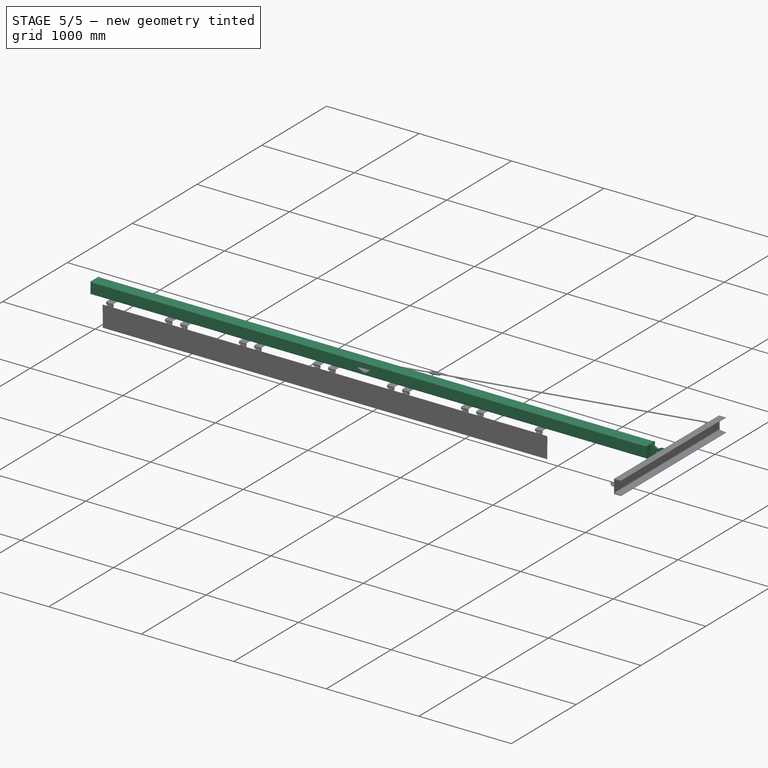
[diagram: stage 5 of 5 — iso view after this stage's code; geometry added in this stage tinted green]
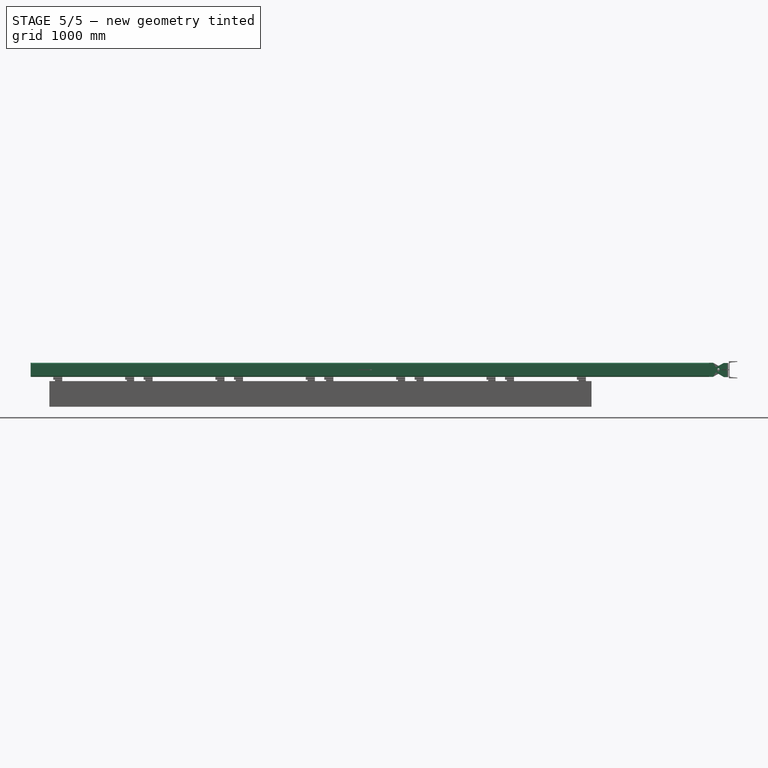
[diagram: stage 5 of 5 — front view after this stage's code; geometry added in this stage tinted green]
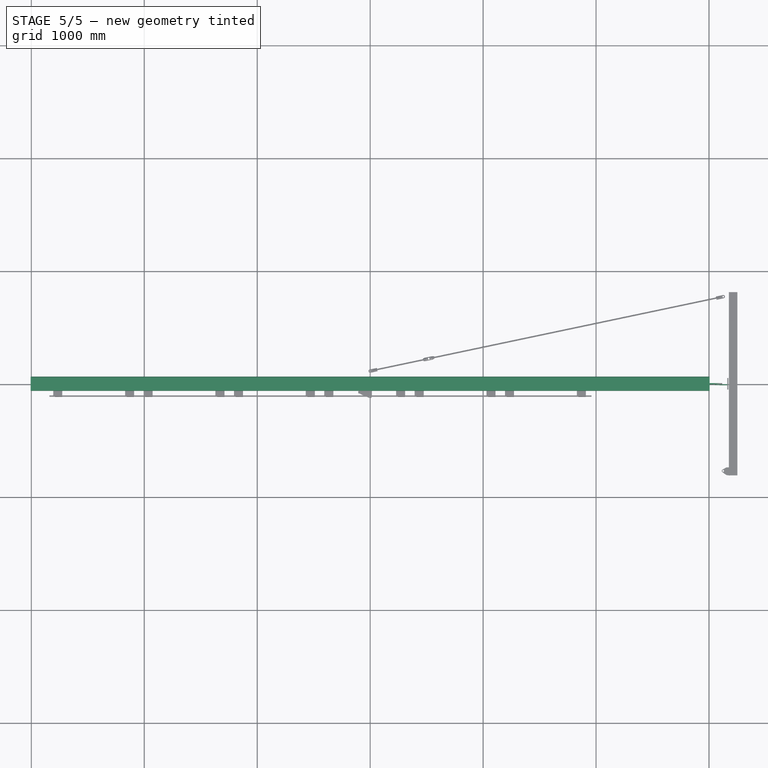
[diagram: stage 5 of 5 — top view after this stage's code; geometry added in this stage tinted green]
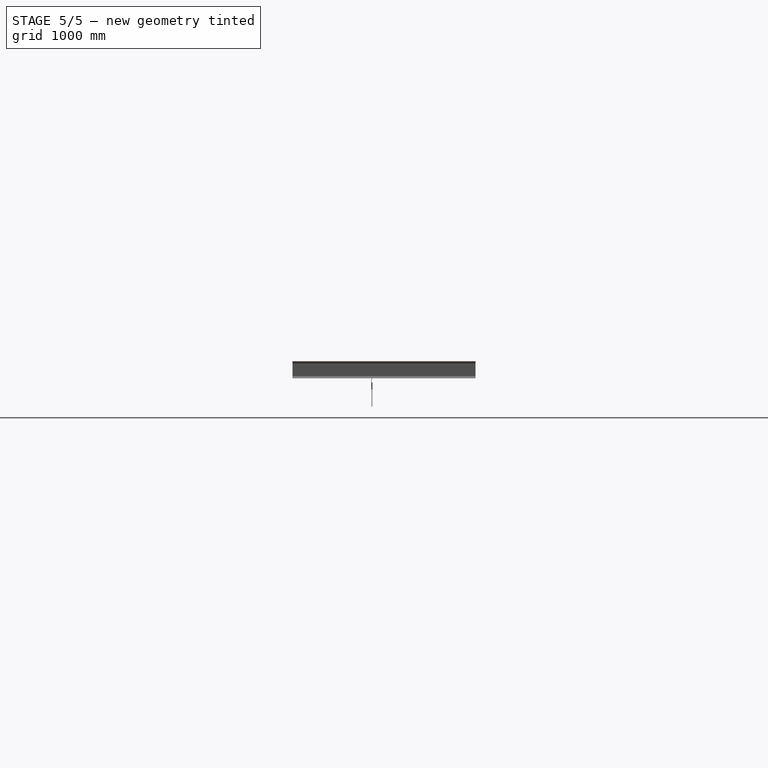
[diagram: stage 5 of 5 — right view after this stage's code; geometry added in this stage tinted green]
FEATURE [Part::FeaturePython] SquarePipe  # WARN: FeaturePython — macro-defined, semantics opaque (R4)
  A = 125
  B = 125
  L = 6000
  Placement = pos=(0,0,0) rot=(0,-1,0;1.5708rad)
  Solid = true
  g0 = 7.85
  mass = 110.008
  size = 39
  standard = SS
  t = 1
  expr: L = Spreadsheet.L0
FEATURE [Sketcher::SketchObject] Sketch
  ArcFitTolerance = 0
  AttachmentSupport = -> [SquarePipe]
  ExternalGeometry = -> [SquarePipe]
  FullyConstrained = true
  MakeInternals = false
  MapMode = 5
  Placement = pos=(-6000,6.661e-13,-1.3323e-12) rot=(0,-1,0;1.5708rad)
  sketch-geometry (4):
    g0: LineSegment StartX=-62.5 StartY=-62.5 StartZ=0 EndX=62.5 EndY=-62.5 EndZ=0
    g1: LineSegment StartX=62.5 StartY=-62.5 StartZ=0 EndX=62.5 EndY=62.5 EndZ=0
    g2: LineSegment StartX=62.5 StartY=62.5 StartZ=0 EndX=-62.5 EndY=62.5 EndZ=0
    g3: LineSegment StartX=-62.5 StartY=62.5 StartZ=0 EndX=-62.5 EndY=-62.5 EndZ=0
  constraints (11):
    c: Coincident(g0,g1)
    c: Coincident(g1,g2)
    c: Coincident(g2,g3)
    c: Coincident(g3,g0)
    c: Horizontal(g0)
    c: Horizontal(g2)
    c: Vertical(g3)
    c: DistanceX(g2,g2) = 125
    c: Equal(g1,g0)
    c: PointOnObject(g-4,g2)
    c: Tangent(g-3,g1) = -1.5708
FEATURE [Part::Extrusion] Extrude
  Base = -> Sketch
  Dir = (-1,0,2e-16)
  DirMode = 2
  FaceMakerClass = Part::FaceMakerBullseye
  FaceMakerMode = 3
  LengthFwd = 6
  LengthRev = 0
  Solid = true
  Symmetric = false
FEATURE [Part::FeaturePython] Clone  label="Extrude001"  # Draft clone (typed FeaturePython)
  AttacherType = Attacher::AttachEngine3D
  Fuse = false
  Objects = -> [Extrude]
  Placement = pos=(6006,0,0) rot=(0,0,1;0rad)
  Scale = (1,1,1)
  expr: .Placement.Base.x = Spreadsheet.L0 + 6
FEATURE [Spreadsheet::Sheet] Spreadsheet
  cells = A1='tankDia   D0; B1(D0)=15500; A2='bufflePosition bp; B2(bp)=1750; A3='beamLength L; B3(L0)==D0 / 2 - bp; A4='bradeWidth W0; B4(W0)==w1 * n0; A5='brade      n0; B5(n0)=6; A6='brade     w1; B6(w1)=800; A7='senterCage width cw; B7(cw)=1620
FEATURE [Sketcher::SketchObject] Sketch001  label="skimmerBrade"
  ArcFitTolerance = 0
  FullyConstrained = true
  MakeInternals = false
  Placement = pos=(0,0,0) rot=(1,0,0;1.5708rad)
  sketch-geometry (7):
    g0: LineSegment StartX=6 StartY=62.5 StartZ=0 EndX=36 EndY=62.5 EndZ=0
    g1: LineSegment StartX=36 StartY=62.5 StartZ=0 EndX=100.694 EndY=26.1551 EndZ=0
    g2: ArcOfCircle CenterX=86 CenterY=0 CenterZ=0 NormalX=0 NormalY=0 NormalZ=1 AngleXU=0 Radius=30 StartAngle=5.22424 EndAngle=7.34213
    g3: LineSegment StartX=100.694 StartY=-26.1551 StartZ=0 EndX=36 EndY=-62.5 EndZ=0
    g4: LineSegment StartX=36 StartY=-62.5 StartZ=0 EndX=6 EndY=-62.5 EndZ=0
    g5: LineSegment StartX=6 StartY=-62.5 StartZ=0 EndX=6 EndY=62.5 EndZ=0
    g6: Circle CenterX=86 CenterY=0 CenterZ=0 NormalX=0 NormalY=0 NormalZ=1 AngleXU=0 Radius=13
  constraints (17):
    c: Horizontal(g0)
    c: Coincident(g0,g1)
    c: Tangent(g1,g2) = 1.5708
    c: Coincident(g3,g4)
    c: Coincident(g4,g5)
    c: Coincident(g5,g0)
    c: PointOnObject(g6,g-1)
    c: Coincident(g0,g-3)
    c: Coincident(g4,g-3)
    c: Horizontal(g4)
    c: DistanceX(g0,g0) = 30
    c: Equal(g0,g4)
    c: Coincident(g2,g6)
    c: DistanceX(g4,g2) = 80
    c: Diameter(g6) = 26
    c: Radius(g2) = 30
    c: Tangent(g2,g3) = 1.5708
FEATURE [Part::Extrusion] Extrude001  label="Extrude002"
  Base = -> Sketch001
  Dir = (0,-1,2e-16)
  DirMode = 2
  FaceMakerClass = Part::FaceMakerBullseye
  FaceMakerMode = 3
  LengthFwd = 10
  LengthRev = 0
  Solid = true
  Symmetric = true
FEATURE [Sketcher::SketchObject] Sketch003
  ArcFitTolerance = 0
  AttachmentSupport = -> [Extrude002]
  ExternalGeometry = -> [Extrude002]
  FullyConstrained = false
  MakeInternals = false
  MapMode = 5
  Placement = pos=(161.703,9,0) rot=(0.57735,0.57735,0.57735;2.0944rad)
  sketch-geometry (4):
    g0: LineSegment StartX=-59 StartY=-64.8581 StartZ=0 EndX=41 EndY=-64.8581 EndZ=0
    g1: LineSegment StartX=41 StartY=-64.8581 StartZ=0 EndX=41 EndY=60.1419 EndZ=0
    g2: LineSegment StartX=41 StartY=60.1419 StartZ=0 EndX=-59 EndY=60.1419 EndZ=0
    g3: LineSegment StartX=-59 StartY=60.1419 StartZ=0 EndX=-59 EndY=-64.8581 EndZ=0
  constraints (8):
    c: Coincident(g0,g3)
    c: Coincident(g2,g3)
    c: Coincident(g0,g1)
    c: Coincident(g1,g2)
    c: DistanceY(g1,g1) = 125
    c: Horizontal(g2)
    c: Horizontal(g0)
    c: PointOnObject(g-3,g2)
FEATURE [Part::Extrusion] Extrude003  label="Extrude005"
  Base = -> Sketch003
  Dir = (1,0,0)
  DirMode = 2
  FaceMakerClass = Part::FaceMakerBullseye
  FaceMakerMode = 3
  LengthFwd = 10
  LengthRev = 0
  Solid = true
  Symmetric = false
FEATURE [Part::Feature] Part__Feature  label="CNROK75-U_b"
  shape: bbox 47.01 x 65.51 x 70.01 mm, 58 faces (baked)
FEATURE [Part::Feature] Part__Feature001  label="CNROK75-U_w"
  shape: bbox 41.3 x 78.6 x 78.6 mm, 86 faces (baked)
FEATURE [App::Part] CNROK75_U  label="CNROK75-U"
  Group = -> [Part__Feature,Part__Feature001]
  Origin = -> Origin003
  Placement = pos=(-5950,2.9e-14,-118.52) rot=(1,0,0;1.5708rad)
  expr: .Placement.Base.x = -Spreadsheet.L0 + 50
FEATURE [Part::FeaturePython] Clone001  label="Extrude006"  # Draft clone (typed FeaturePython)
  AttacherType = Attacher::AttachEngine3D
  Fuse = false
  Objects = -> [Extrude002]
  Placement = pos=(0,-9,0) rot=(0,0,1;0rad)
  Scale = (1,1,1)
FEATURE [App::Part] Part  label="hontai"
  Group = -> [Sketch001,Clone,SquarePipe,Sketch,Extrude,Extrude001,Sketch018,Extrude017,Mirror001]
  Origin = -> Origin
FEATURE [Part::Compound] Compound  label="hontai001"
  Links = -> [Part]
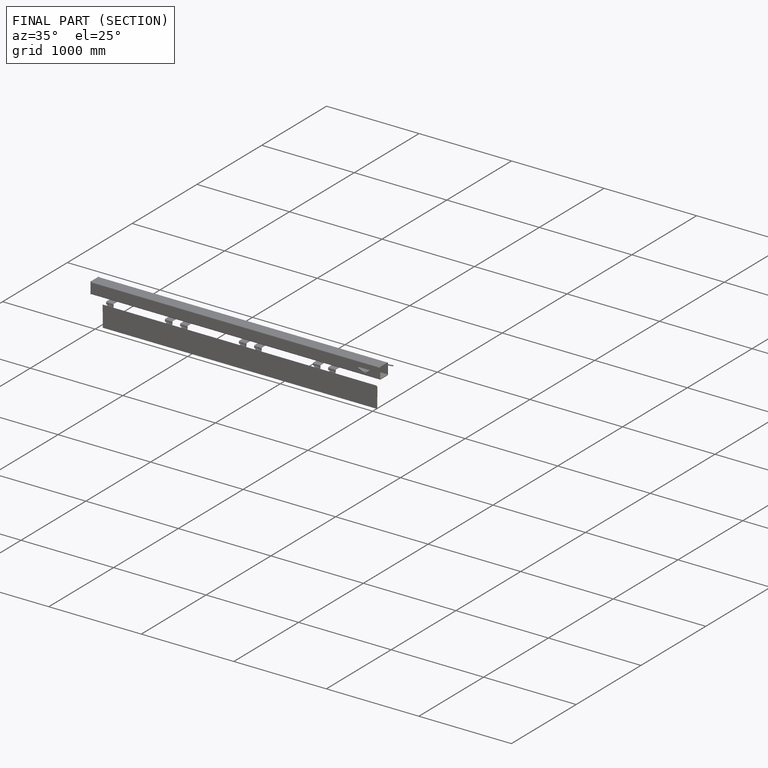
[diagram: finished part — half-section view (interior)]
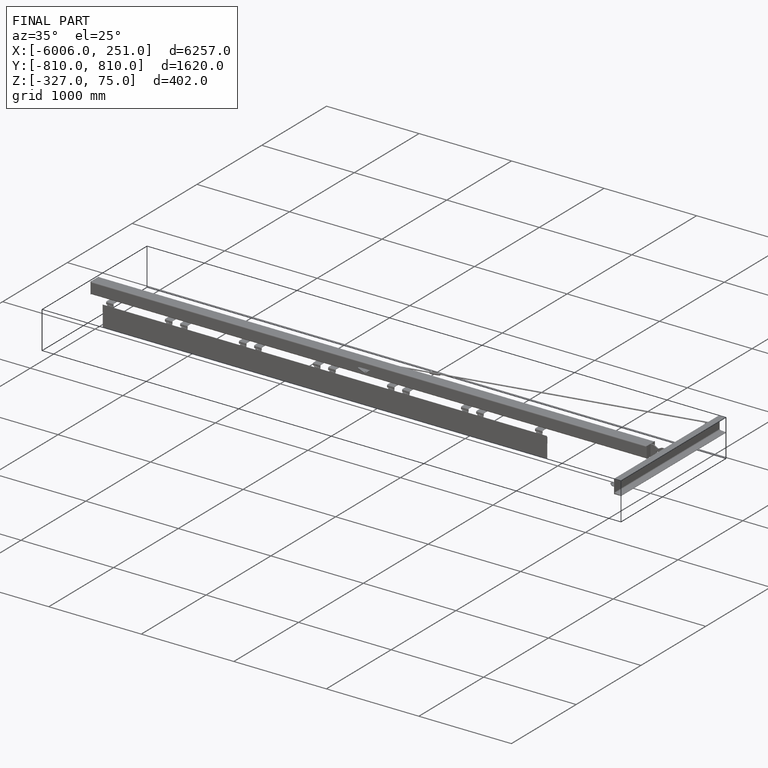
[diagram: finished part — iso view with bounding-box wireframe]
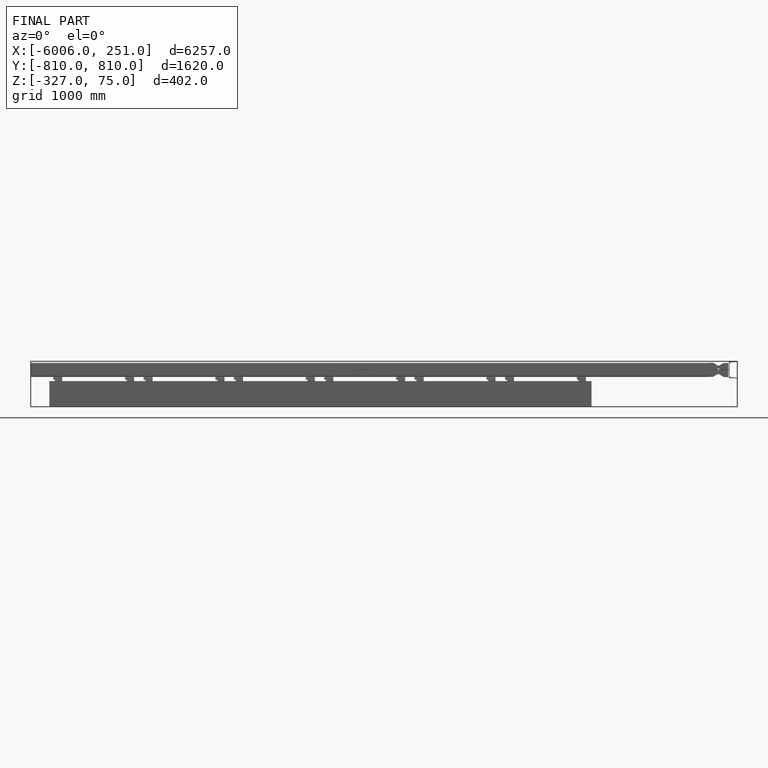
[diagram: finished part — front view with bounding-box wireframe]
